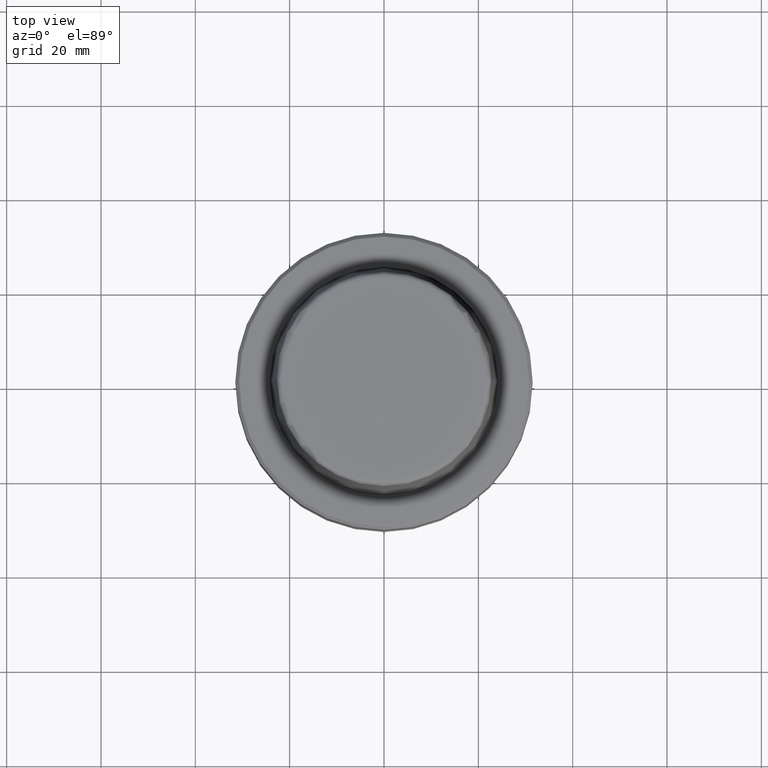
[diagram: clean part render]
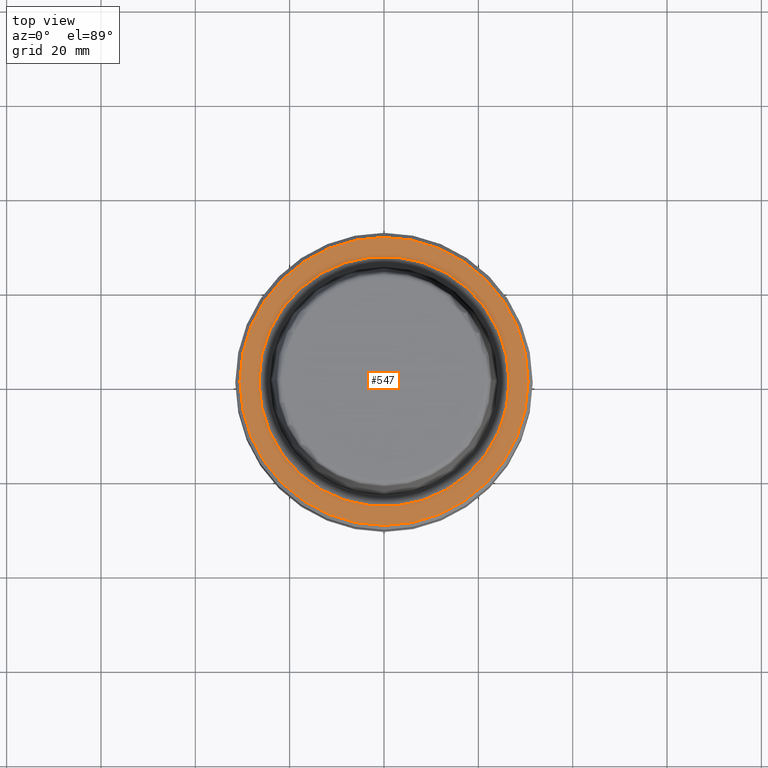
[diagram: same view with one face highlighted and labeled with its STEP entity id]
A machine part, top view. The second image highlights one B-rep face of the part: STEP entity #547.
In plain terms, the highlighted planar face has unit normal (0, 0, -1).
Its self-contained STEP definition (entity closure, byte-faithful):
#12 = DIRECTION ( 'NONE',  ( 1.000000000000000000, 0.0000000000000000000, 0.0000000000000000000 ) ) ;
#98 = CIRCLE ( 'NONE', #785, 30.53431457505076100 ) ;
#119 = ORIENTED_EDGE ( 'NONE', *, *, #1119, .T. ) ;
#154 = VERTEX_POINT ( 'NONE', #691 ) ;
#187 = AXIS2_PLACEMENT_3D ( 'NONE', #418, #524, #1176 ) ;
#193 = ORIENTED_EDGE ( 'NONE', *, *, #204, .T. ) ;
#204 = EDGE_CURVE ( 'NONE', #1164, #154, #98, .T. ) ;
#208 = FACE_OUTER_BOUND ( 'NONE', #1146, .T. ) ;
#224 = FACE_BOUND ( 'NONE', #1135, .T. ) ;
#228 = DIRECTION ( 'NONE',  ( -0.0000000000000000000, -0.0000000000000000000, 1.000000000000000000 ) ) ;
#314 = PLANE ( 'NONE',  #187 ) ;
#418 = CARTESIAN_POINT ( 'NONE',  ( 0.0000000000000000000, 26.52499999999999900, -1.111307226797642000E-015 ) ) ;
#438 = EDGE_CURVE ( 'NONE', #565, #544, #494, .T. ) ;
#494 = CIRCLE ( 'NONE', #614, 26.52499999999999900 ) ;
#498 = CARTESIAN_POINT ( 'NONE',  ( 0.0000000000000000000, 0.0000000000000000000, 0.0000000000000000000 ) ) ;
#524 = DIRECTION ( 'NONE',  ( 0.0000000000000000000, 0.0000000000000000000, -1.000000000000000000 ) ) ;
#544 = VERTEX_POINT ( 'NONE', #990 ) ;
#547 = ADVANCED_FACE ( 'NONE', ( #224, #208 ), #314, .F. ) ;
#549 = DIRECTION ( 'NONE',  ( -0.0000000000000000000, -0.0000000000000000000, 1.000000000000000000 ) ) ;
#557 = DIRECTION ( 'NONE',  ( -0.0000000000000000000, -0.0000000000000000000, 1.000000000000000000 ) ) ;
#565 = VERTEX_POINT ( 'NONE', #733 ) ;
#614 = AXIS2_PLACEMENT_3D ( 'NONE', #1087, #549, #1205 ) ;
#691 = CARTESIAN_POINT ( 'NONE',  ( 30.53431457505076100, 0.0000000000000000000, 0.0000000000000000000 ) ) ;
#714 = CIRCLE ( 'NONE', #742, 26.52499999999999900 ) ;
#733 = CARTESIAN_POINT ( 'NONE',  ( -26.52499999999999900, 3.248375634738354300E-015, 0.0000000000000000000 ) ) ;
#742 = AXIS2_PLACEMENT_3D ( 'NONE', #498, #1179, #12 ) ;
#785 = AXIS2_PLACEMENT_3D ( 'NONE', #1100, #557, #1213 ) ;
#832 = CARTESIAN_POINT ( 'NONE',  ( 0.0000000000000000000, 0.0000000000000000000, 0.0000000000000000000 ) ) ;
#884 = CIRCLE ( 'NONE', #1069, 30.53431457505076100 ) ;
#921 = DIRECTION ( 'NONE',  ( 1.000000000000000000, 0.0000000000000000000, 0.0000000000000000000 ) ) ;
#990 = CARTESIAN_POINT ( 'NONE',  ( 26.52499999999999900, 0.0000000000000000000, 0.0000000000000000000 ) ) ;
#995 = CARTESIAN_POINT ( 'NONE',  ( -30.53431457505076100, 3.756694181974138600E-015, 0.0000000000000000000 ) ) ;
#1035 = EDGE_CURVE ( 'NONE', #544, #565, #714, .T. ) ;
#1069 = AXIS2_PLACEMENT_3D ( 'NONE', #832, #228, #921 ) ;
#1075 = ORIENTED_EDGE ( 'NONE', *, *, #1035, .F. ) ;
#1087 = CARTESIAN_POINT ( 'NONE',  ( 0.0000000000000000000, 0.0000000000000000000, 0.0000000000000000000 ) ) ;
#1100 = CARTESIAN_POINT ( 'NONE',  ( 0.0000000000000000000, 0.0000000000000000000, 0.0000000000000000000 ) ) ;
#1119 = EDGE_CURVE ( 'NONE', #154, #1164, #884, .T. ) ;
#1135 = EDGE_LOOP ( 'NONE', ( #1075, #1232 ) ) ;
#1146 = EDGE_LOOP ( 'NONE', ( #119, #193 ) ) ;
#1164 = VERTEX_POINT ( 'NONE', #995 ) ;
#1176 = DIRECTION ( 'NONE',  ( -1.000000000000000000, 0.0000000000000000000, -0.0000000000000000000 ) ) ;
#1179 = DIRECTION ( 'NONE',  ( -0.0000000000000000000, -0.0000000000000000000, 1.000000000000000000 ) ) ;
#1205 = DIRECTION ( 'NONE',  ( 1.000000000000000000, 0.0000000000000000000, 0.0000000000000000000 ) ) ;
#1213 = DIRECTION ( 'NONE',  ( 1.000000000000000000, 0.0000000000000000000, 0.0000000000000000000 ) ) ;
#1232 = ORIENTED_EDGE ( 'NONE', *, *, #438, .F. ) ;